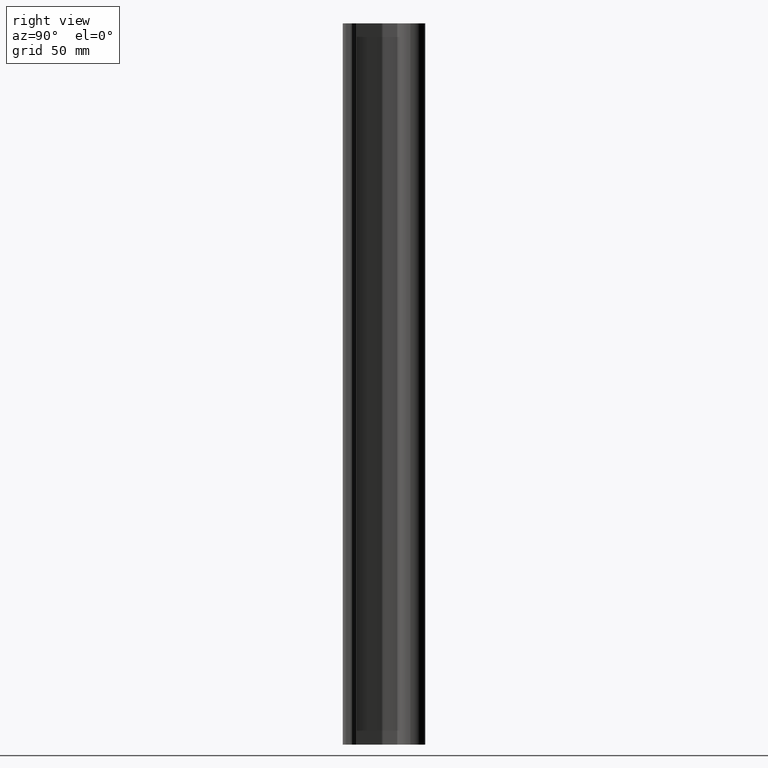
[diagram: clean part render]
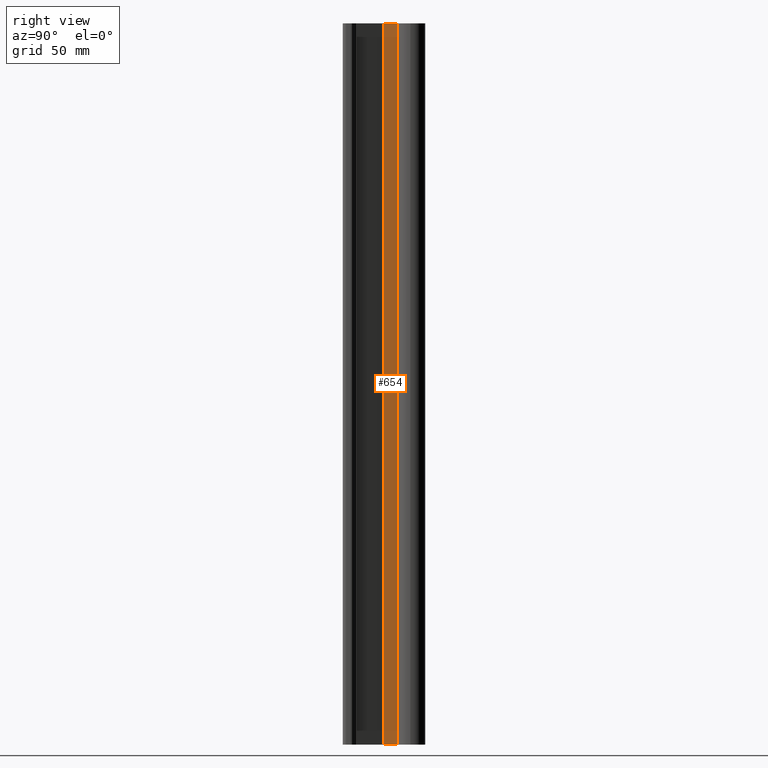
[diagram: same view with one face highlighted and labeled with its STEP entity id]
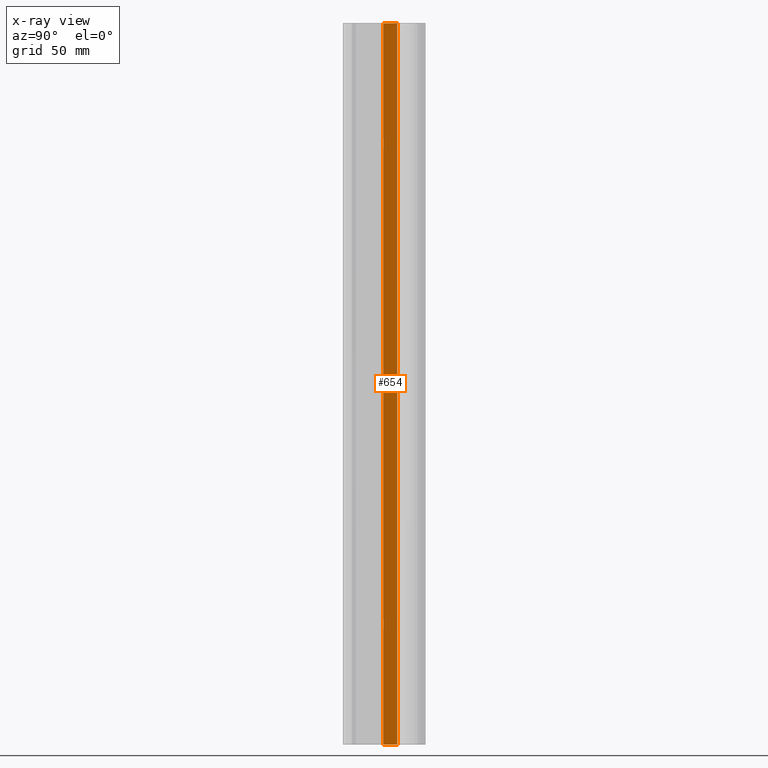
[diagram: x-ray of the same camera — body ghosted, the highlighted face saturated]
A machine part, right view. The second image highlights one B-rep face of the part: STEP entity #654.
The next image is the same camera in x-ray: the body ghosted, the highlighted face saturated — about 0% of this face is hidden behind the body in this view.
In plain terms, the highlighted planar face has unit normal (1, -0, 0).
Its self-contained STEP definition (entity closure, byte-faithful):
#108 = ORIENTED_EDGE ( 'NONE', *, *, #5016, .T. ) ;
#274 = VERTEX_POINT ( 'NONE', #468 ) ;
#298 = LINE ( 'NONE', #3974, #6438 ) ;
#468 = CARTESIAN_POINT ( 'NONE',  ( 0.1300000000000008649, 0.9062716873605739520, 0.000000000000000000 ) ) ;
#498 = CARTESIAN_POINT ( 'NONE',  ( 0.1300000000000008094, 0.6731474388999991731, -13.75252057657289484 ) ) ;
#567 = CARTESIAN_POINT ( 'NONE',  ( 0.1300000000000008649, 0.9062716873605739520, -12.00000000000000178 ) ) ;
#654 = ADVANCED_FACE ( 'NONE', ( #7592 ), #5882, .T. ) ;
#877 = VERTEX_POINT ( 'NONE', #4903 ) ;
#1003 = CARTESIAN_POINT ( 'NONE',  ( 0.1300000000000008094, 0.6731474388999991731, 0.000000000000000000 ) ) ;
#1147 = ORIENTED_EDGE ( 'NONE', *, *, #2574, .F. ) ;
#1321 = EDGE_CURVE ( 'NONE', #5154, #274, #5835, .T. ) ;
#1598 = VECTOR ( 'NONE', #7018, 39.37007874015748143 ) ;
#2412 = ORIENTED_EDGE ( 'NONE', *, *, #7184, .F. ) ;
#2422 = ORIENTED_EDGE ( 'NONE', *, *, #1321, .F. ) ;
#2574 = EDGE_CURVE ( 'NONE', #877, #5154, #298, .T. ) ;
#3471 = LINE ( 'NONE', #7648, #6216 ) ;
#3535 = CARTESIAN_POINT ( 'NONE',  ( 0.1300000000000008094, 0.6731474388999991731, -12.00000000000000178 ) ) ;
#3974 = CARTESIAN_POINT ( 'NONE',  ( 0.1300000000000008094, 0.6731474388999991731, -13.75252057657289484 ) ) ;
#4131 = DIRECTION ( 'NONE',  ( 2.929605148010015414E-16, 1.000000000000000000, 0.000000000000000000 ) ) ;
#4651 = DIRECTION ( 'NONE',  ( 0.000000000000000000, 0.000000000000000000, 1.000000000000000000 ) ) ;
#4903 = CARTESIAN_POINT ( 'NONE',  ( 0.1300000000000008094, 0.6731474388999991731, -12.00000000000000178 ) ) ;
#5016 = EDGE_CURVE ( 'NONE', #7103, #274, #3471, .T. ) ;
#5154 = VERTEX_POINT ( 'NONE', #7801 ) ;
#5253 = DIRECTION ( 'NONE',  ( -2.929605148010015414E-16, -1.000000000000000000, 0.000000000000000000 ) ) ;
#5290 = DIRECTION ( 'NONE',  ( 1.000000000000000000, -2.929605148010015414E-16, 0.000000000000000000 ) ) ;
#5835 = LINE ( 'NONE', #1003, #1598 ) ;
#5882 = PLANE ( 'NONE',  #6075 ) ;
#6075 = AXIS2_PLACEMENT_3D ( 'NONE', #498, #5290, #4131 ) ;
#6112 = VECTOR ( 'NONE', #5253, 39.37007874015748143 ) ;
#6216 = VECTOR ( 'NONE', #4651, 39.37007874015748143 ) ;
#6337 = EDGE_LOOP ( 'NONE', ( #2412, #108, #2422, #1147 ) ) ;
#6438 = VECTOR ( 'NONE', #6858, 39.37007874015748143 ) ;
#6858 = DIRECTION ( 'NONE',  ( 0.000000000000000000, 0.000000000000000000, 1.000000000000000000 ) ) ;
#7018 = DIRECTION ( 'NONE',  ( 2.929605148010015414E-16, 1.000000000000000000, 0.000000000000000000 ) ) ;
#7103 = VERTEX_POINT ( 'NONE', #567 ) ;
#7184 = EDGE_CURVE ( 'NONE', #7103, #877, #7705, .T. ) ;
#7592 = FACE_OUTER_BOUND ( 'NONE', #6337, .T. ) ;
#7648 = CARTESIAN_POINT ( 'NONE',  ( 0.1300000000000008649, 0.9062716873605739520, -13.75252057657289484 ) ) ;
#7705 = LINE ( 'NONE', #3535, #6112 ) ;
#7801 = CARTESIAN_POINT ( 'NONE',  ( 0.1300000000000008094, 0.6731474388999991731, 0.000000000000000000 ) ) ;